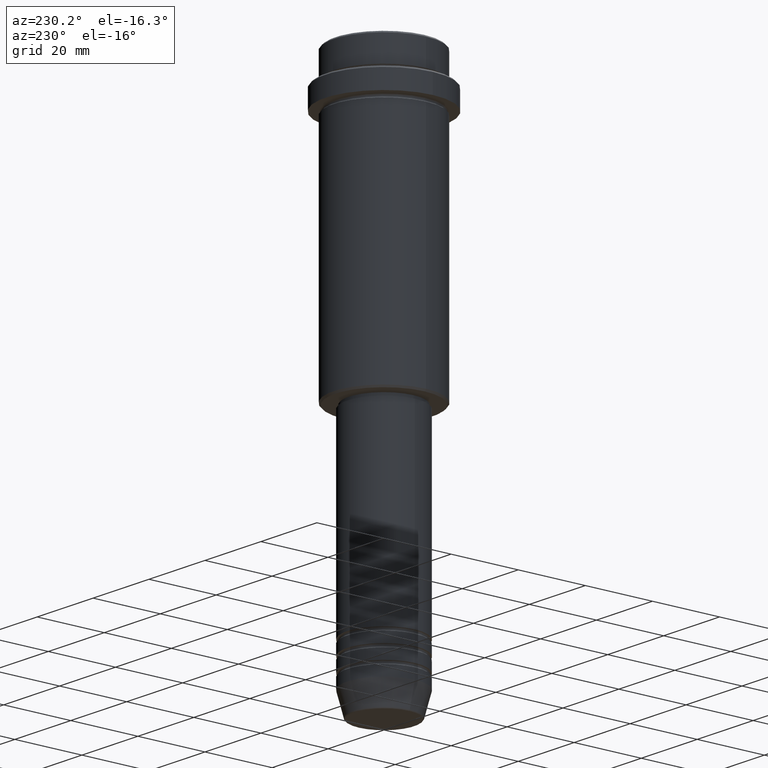
[diagram: clean part render]
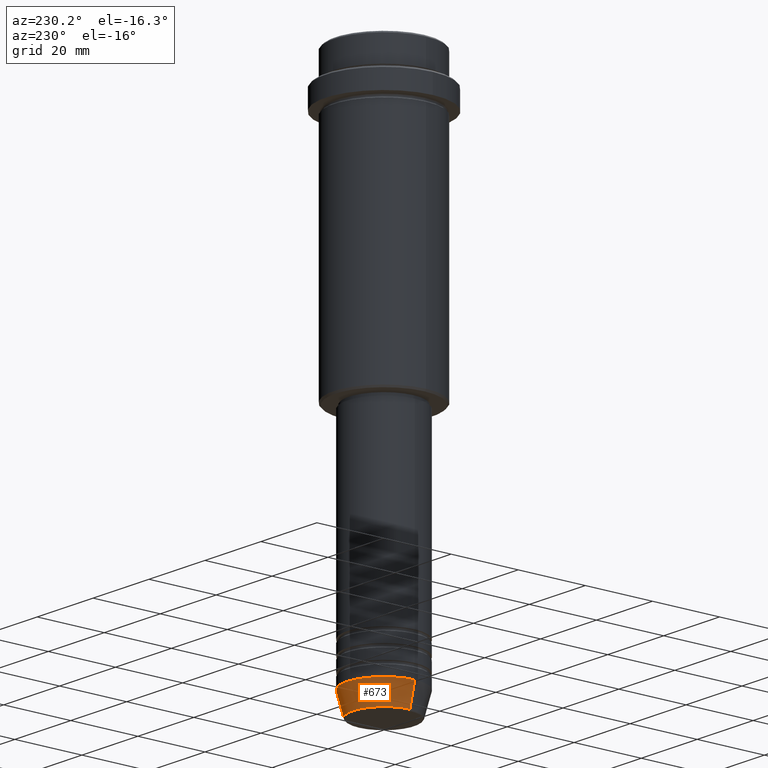
[diagram: same view with one face highlighted and labeled with its STEP entity id]
A machine part, auxiliary view. The second image highlights one B-rep face of the part: STEP entity #673.
In plain terms, the highlighted conical surface has half-angle 15 deg.
Its self-contained STEP definition (entity closure, byte-faithful):
#10 = VECTOR ( 'NONE', #1414, 1000.000000000000000 ) ;
#40 = VERTEX_POINT ( 'NONE', #646 ) ;
#93 = CARTESIAN_POINT ( 'NONE',  ( 11.00000000000000000, 0.000000000000000000, -153.0000000000000000 ) ) ;
#123 = DIRECTION ( 'NONE',  ( -0.000000000000000000, -0.000000000000000000, 1.000000000000000000 ) ) ;
#229 = CARTESIAN_POINT ( 'NONE',  ( 0.000000000000000000, 0.000000000000000000, -159.6294095225512422 ) ) ;
#254 = ORIENTED_EDGE ( 'NONE', *, *, #417, .F. ) ;
#326 = VERTEX_POINT ( 'NONE', #765 ) ;
#329 = EDGE_CURVE ( 'NONE', #654, #40, #1303, .T. ) ;
#417 = EDGE_CURVE ( 'NONE', #1165, #326, #530, .T. ) ;
#439 = CARTESIAN_POINT ( 'NONE',  ( -11.00000000000000000, 1.347111479062088405E-15, -153.0000000000000000 ) ) ;
#463 = VECTOR ( 'NONE', #636, 1000.000000000000000 ) ;
#521 = CARTESIAN_POINT ( 'NONE',  ( 0.000000000000000000, 0.000000000000000000, -153.0000000000000000 ) ) ;
#522 = ORIENTED_EDGE ( 'NONE', *, *, #670, .F. ) ;
#530 = CIRCLE ( 'NONE', #557, 11.00000000000000000 ) ;
#542 = DIRECTION ( 'NONE',  ( 1.000000000000000000, 0.000000000000000000, 0.000000000000000000 ) ) ;
#557 = AXIS2_PLACEMENT_3D ( 'NONE', #1184, #952, #542 ) ;
#636 = DIRECTION ( 'NONE',  ( 0.2588190451025213501, 0.000000000000000000, 0.9659258262890680902 ) ) ;
#646 = CARTESIAN_POINT ( 'NONE',  ( -9.223655072137189492, 1.238341722557647202E-15, -159.6294095225512422 ) ) ;
#654 = VERTEX_POINT ( 'NONE', #966 ) ;
#670 = EDGE_CURVE ( 'NONE', #654, #1165, #835, .T. ) ;
#673 = ADVANCED_FACE ( 'NONE', ( #1277 ), #937, .T. ) ;
#705 = AXIS2_PLACEMENT_3D ( 'NONE', #229, #123, #1259 ) ;
#765 = CARTESIAN_POINT ( 'NONE',  ( -11.00000000000000000, 1.347111479062088405E-15, -153.0000000000000000 ) ) ;
#785 = LINE ( 'NONE', #439, #10 ) ;
#835 = LINE ( 'NONE', #93, #463 ) ;
#904 = EDGE_CURVE ( 'NONE', #40, #326, #785, .T. ) ;
#937 = CONICAL_SURFACE ( 'NONE', #1374, 11.00000000000000000, 0.2617993877991500740 ) ;
#952 = DIRECTION ( 'NONE',  ( -0.000000000000000000, -0.000000000000000000, 1.000000000000000000 ) ) ;
#959 = ORIENTED_EDGE ( 'NONE', *, *, #329, .T. ) ;
#966 = CARTESIAN_POINT ( 'NONE',  ( 9.223655072137189492, 0.000000000000000000, -159.6294095225512422 ) ) ;
#997 = EDGE_LOOP ( 'NONE', ( #959, #1144, #254, #522 ) ) ;
#1071 = DIRECTION ( 'NONE',  ( 1.000000000000000000, 0.000000000000000000, 0.000000000000000000 ) ) ;
#1144 = ORIENTED_EDGE ( 'NONE', *, *, #904, .T. ) ;
#1162 = CARTESIAN_POINT ( 'NONE',  ( 11.00000000000000000, 0.000000000000000000, -153.0000000000000000 ) ) ;
#1165 = VERTEX_POINT ( 'NONE', #1162 ) ;
#1180 = DIRECTION ( 'NONE',  ( -0.000000000000000000, -0.000000000000000000, 1.000000000000000000 ) ) ;
#1184 = CARTESIAN_POINT ( 'NONE',  ( 0.000000000000000000, 0.000000000000000000, -153.0000000000000000 ) ) ;
#1259 = DIRECTION ( 'NONE',  ( 1.000000000000000000, 0.000000000000000000, 0.000000000000000000 ) ) ;
#1277 = FACE_OUTER_BOUND ( 'NONE', #997, .T. ) ;
#1303 = CIRCLE ( 'NONE', #705, 9.223655072137189492 ) ;
#1374 = AXIS2_PLACEMENT_3D ( 'NONE', #521, #1180, #1071 ) ;
#1414 = DIRECTION ( 'NONE',  ( -0.2588190451025213501, 3.169619151431772337E-17, 0.9659258262890680902 ) ) ;